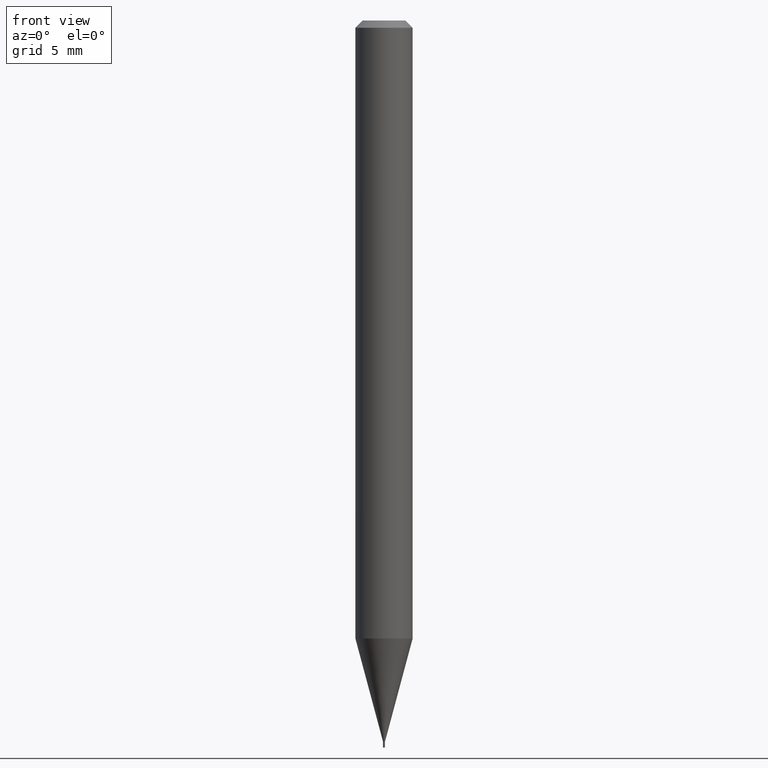
[diagram: clean part render]
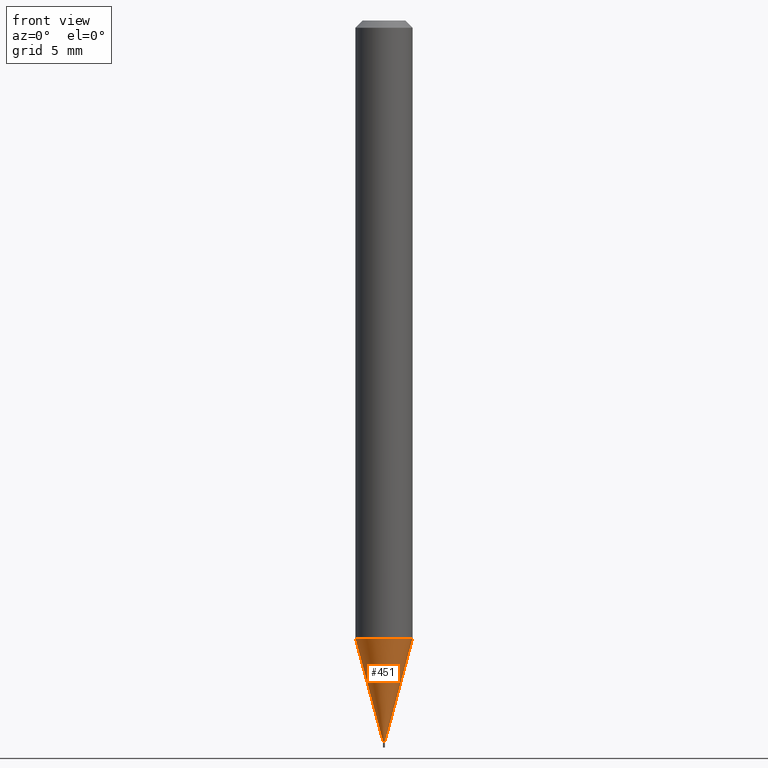
[diagram: same view with one face highlighted and labeled with its STEP entity id]
A machine part, front view. The second image highlights one B-rep face of the part: STEP entity #451.
In plain terms, the highlighted conical surface has half-angle 15 deg.
Its self-contained STEP definition (entity closure, byte-faithful):
#4 = FACE_OUTER_BOUND ( 'NONE', #97, .T. ) ;
#9 = DIRECTION ( 'NONE',  ( -2.445468806185136597E-29, 3.491481338843145583E-15, 1.000000000000000000 ) ) ;
#16 = CARTESIAN_POINT ( 'NONE',  ( 3.639346677364720273E-29, -5.196022528466369115E-15, -1.488199999999999967 ) ) ;
#25 = VERTEX_POINT ( 'NONE', #73 ) ;
#29 = EDGE_CURVE ( 'NONE', #454, #25, #300, .T. ) ;
#34 = DIRECTION ( 'NONE',  ( 0.2588190451025214611, 1.565188264969621573E-15, 0.9659258262890682012 ) ) ;
#36 = CIRCLE ( 'NONE', #257, 0.001949999999999910139 ) ;
#46 = CARTESIAN_POINT ( 'NONE',  ( -0.05904999999999999138, -4.032412016661256673E-15, -1.275099898887817274 ) ) ;
#73 = CARTESIAN_POINT ( 'NONE',  ( 0.05904999999999999138, -4.864331448244970298E-15, -1.275099898887817274 ) ) ;
#97 = EDGE_LOOP ( 'NONE', ( #431, #418, #408, #201 ) ) ;
#105 = EDGE_CURVE ( 'NONE', #203, #25, #346, .T. ) ;
#112 = DIRECTION ( 'NONE',  ( -2.445468806185136597E-29, 3.491481338843145583E-15, 1.000000000000000000 ) ) ;
#122 = DIRECTION ( 'NONE',  ( 1.000000000000000000, -6.982962677686480492E-15, 0.000000000000000000 ) ) ;
#155 = DIRECTION ( 'NONE',  ( -2.445468806185136597E-29, 3.491481338843145583E-15, 1.000000000000000000 ) ) ;
#157 = CARTESIAN_POINT ( 'NONE',  ( -0.001949999999999910139, -5.182166945119047109E-15, -1.488199999999999967 ) ) ;
#182 = CARTESIAN_POINT ( 'NONE',  ( 3.118217027499978944E-29, -4.451987502127596166E-15, -1.275099898887817274 ) ) ;
#191 = EDGE_CURVE ( 'NONE', #224, #203, #36, .T. ) ;
#194 = CONICAL_SURFACE ( 'NONE', #354, 0.001949999999999910139, 0.2617993877991501295 ) ;
#201 = ORIENTED_EDGE ( 'NONE', *, *, #29, .F. ) ;
#203 = VERTEX_POINT ( 'NONE', #276 ) ;
#206 = VECTOR ( 'NONE', #34, 39.37007874015747433 ) ;
#219 = CARTESIAN_POINT ( 'NONE',  ( 3.639346677364720273E-29, -5.196022528466369115E-15, -1.488199999999999967 ) ) ;
#224 = VERTEX_POINT ( 'NONE', #464 ) ;
#252 = DIRECTION ( 'NONE',  ( 1.000000000000000000, -6.982962677686480492E-15, 0.000000000000000000 ) ) ;
#257 = AXIS2_PLACEMENT_3D ( 'NONE', #16, #9, #252 ) ;
#276 = CARTESIAN_POINT ( 'NONE',  ( 0.001949999999999910139, -5.209639305687856843E-15, -1.488199999999999967 ) ) ;
#300 = CIRCLE ( 'NONE', #369, 0.05904999999999999832 ) ;
#316 = VECTOR ( 'NONE', #438, 39.37007874015747433 ) ;
#346 = LINE ( 'NONE', #463, #206 ) ;
#353 = DIRECTION ( 'NONE',  ( 1.000000000000000000, -6.982962677686273021E-15, 0.000000000000000000 ) ) ;
#354 = AXIS2_PLACEMENT_3D ( 'NONE', #219, #155, #122 ) ;
#369 = AXIS2_PLACEMENT_3D ( 'NONE', #182, #112, #353 ) ;
#408 = ORIENTED_EDGE ( 'NONE', *, *, #105, .T. ) ;
#411 = EDGE_CURVE ( 'NONE', #224, #454, #430, .T. ) ;
#418 = ORIENTED_EDGE ( 'NONE', *, *, #191, .T. ) ;
#430 = LINE ( 'NONE', #157, #316 ) ;
#431 = ORIENTED_EDGE ( 'NONE', *, *, #411, .F. ) ;
#438 = DIRECTION ( 'NONE',  ( -0.2588190451025214611, 5.211531920934551042E-15, 0.9659258262890682012 ) ) ;
#451 = ADVANCED_FACE ( 'NONE', ( #4 ), #194, .T. ) ;
#454 = VERTEX_POINT ( 'NONE', #46 ) ;
#463 = CARTESIAN_POINT ( 'NONE',  ( 0.001949999999999910139, -5.209639305687856843E-15, -1.488199999999999967 ) ) ;
#464 = CARTESIAN_POINT ( 'NONE',  ( -0.001949999999999910139, -4.607289480890151497E-15, -1.488199999999999967 ) ) ;